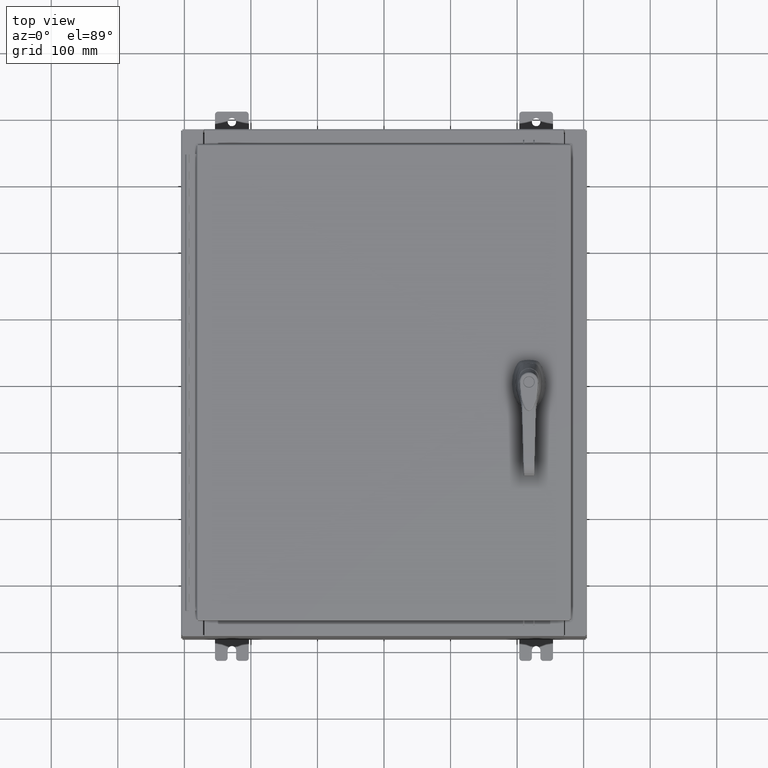
[diagram: clean part render]
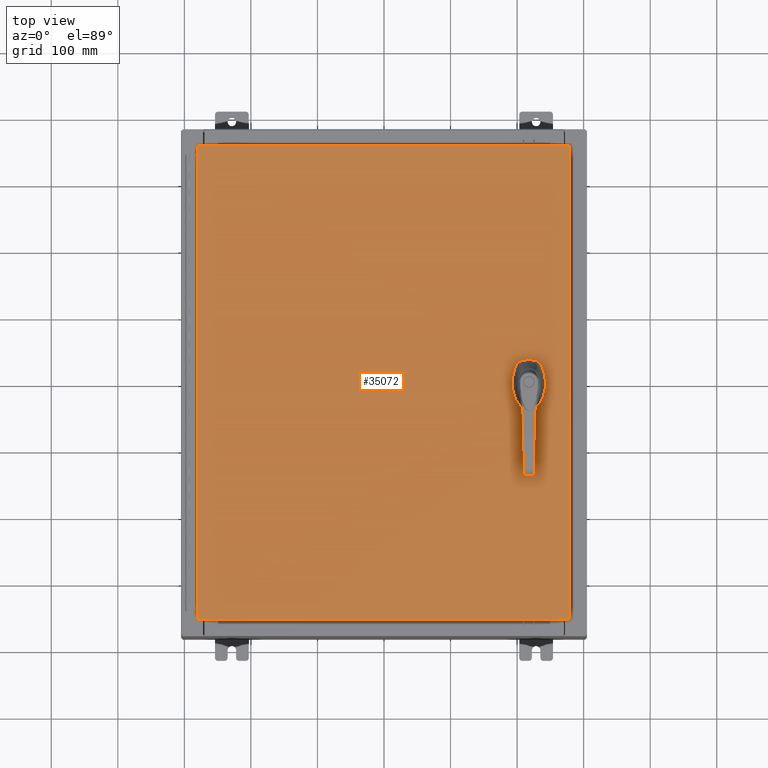
[diagram: same view with one face highlighted and labeled with its STEP entity id]
A machine part, top view. The second image highlights one B-rep face of the part: STEP entity #35072.
In plain terms, the highlighted planar face has unit normal (0, 0, -1).
Its self-contained STEP definition (entity closure, byte-faithful):
#1230 = EDGE_CURVE ( 'NONE', #35526, #105007, #109767, .T. ) ;
#2139 = EDGE_CURVE ( 'NONE', #70775, #88157, #19090, .T. ) ;
#2885 = CARTESIAN_POINT ( 'NONE',  ( -10.99030000000000000, 14.00630000000000100, -2.048885995248197400E-016 ) ) ;
#3377 = CARTESIAN_POINT ( 'NONE',  ( 8.577999999999999400, 0.0000000000000000000, 0.0000000000000000000 ) ) ;
#4456 = CARTESIAN_POINT ( 'NONE',  ( 8.406499999999999400, -1.338000000000000100, 0.0000000000000000000 ) ) ;
#9312 = VECTOR ( 'NONE', #97770, 39.37007874015748100 ) ;
#11094 = CARTESIAN_POINT ( 'NONE',  ( 0.0000000000000000000, 0.0000000000000000000, 0.0000000000000000000 ) ) ;
#12430 = DIRECTION ( 'NONE',  ( 1.000000000000000000, 0.0000000000000000000, 0.0000000000000000000 ) ) ;
#13641 = ORIENTED_EDGE ( 'NONE', *, *, #1230, .F. ) ;
#14048 = ORIENTED_EDGE ( 'NONE', *, *, #94148, .F. ) ;
#16464 = DIRECTION ( 'NONE',  ( -0.0000000000000000000, 0.0000000000000000000, 1.000000000000000000 ) ) ;
#19034 = DIRECTION ( 'NONE',  ( -0.0000000000000000000, 0.0000000000000000000, 1.000000000000000000 ) ) ;
#19090 = CIRCLE ( 'NONE', #76525, 0.1715000000000011500 ) ;
#19731 = ORIENTED_EDGE ( 'NONE', *, *, #37177, .F. ) ;
#21536 = LINE ( 'NONE', #71885, #114935 ) ;
#22124 = VERTEX_POINT ( 'NONE', #87342 ) ;
#22167 = FACE_BOUND ( 'NONE', #51719, .T. ) ;
#22330 = CARTESIAN_POINT ( 'NONE',  ( 10.99030000000000000, 14.00629999999999800, -2.048885995248197400E-016 ) ) ;
#23907 = LINE ( 'NONE', #107891, #66390 ) ;
#24659 = VECTOR ( 'NONE', #87034, 39.37007874015748100 ) ;
#24834 = CARTESIAN_POINT ( 'NONE',  ( 8.749500000000001200, -1.338000000000000100, 0.0000000000000000000 ) ) ;
#25132 = LINE ( 'NONE', #110774, #70450 ) ;
#26752 = CIRCLE ( 'NONE', #27477, 0.4499999999999156900 ) ;
#26948 = AXIS2_PLACEMENT_3D ( 'NONE', #73222, #19034, #82316 ) ;
#27477 = AXIS2_PLACEMENT_3D ( 'NONE', #95550, #41382, #104639 ) ;
#28140 = VERTEX_POINT ( 'NONE', #76343 ) ;
#28326 = EDGE_CURVE ( 'NONE', #106172, #22124, #21536, .T. ) ;
#28446 = AXIS2_PLACEMENT_3D ( 'NONE', #97382, #43223, #106478 ) ;
#29030 = CARTESIAN_POINT ( 'NONE',  ( 8.377772629243690300, 0.4029999999999252000, 0.0000000000000000000 ) ) ;
#29323 = PLANE ( 'NONE',  #72355 ) ;
#29329 = DIRECTION ( 'NONE',  ( 0.0000000000000000000, -1.000000000000000000, 0.0000000000000000000 ) ) ;
#30129 = ORIENTED_EDGE ( 'NONE', *, *, #28326, .T. ) ;
#30607 = DIRECTION ( 'NONE',  ( 1.000000000000000000, 0.0000000000000000000, 0.0000000000000000000 ) ) ;
#30853 = VERTEX_POINT ( 'NONE', #64247 ) ;
#31437 = VERTEX_POINT ( 'NONE', #33979 ) ;
#31760 = ORIENTED_EDGE ( 'NONE', *, *, #31910, .F. ) ;
#31910 = EDGE_CURVE ( 'NONE', #31437, #40665, #26752, .T. ) ;
#32397 = ORIENTED_EDGE ( 'NONE', *, *, #2139, .F. ) ;
#33979 = CARTESIAN_POINT ( 'NONE',  ( 8.980999999999925300, 0.2002273707563080300, 0.0000000000000000000 ) ) ;
#34529 = CARTESIAN_POINT ( 'NONE',  ( 10.99030000000000000, -14.00629999999999800, -2.048885995248197400E-016 ) ) ;
#35072 = ADVANCED_FACE ( 'NONE', ( #91488, #70287, #22167 ), #29323, .F. ) ;
#35526 = VERTEX_POINT ( 'NONE', #29030 ) ;
#37048 = EDGE_CURVE ( 'NONE', #22124, #53087, #57514, .T. ) ;
#37177 = EDGE_CURVE ( 'NONE', #88157, #70775, #97074, .T. ) ;
#38094 = LINE ( 'NONE', #42923, #65001 ) ;
#38430 = DIRECTION ( 'NONE',  ( -1.000000000000000000, 0.0000000000000000000, -0.0000000000000000000 ) ) ;
#38925 = EDGE_CURVE ( 'NONE', #31437, #56629, #96863, .T. ) ;
#39011 = EDGE_CURVE ( 'NONE', #53087, #87627, #112412, .T. ) ;
#40665 = VERTEX_POINT ( 'NONE', #110733 ) ;
#41382 = DIRECTION ( 'NONE',  ( -0.0000000000000000000, 0.0000000000000000000, 1.000000000000000000 ) ) ;
#42923 = CARTESIAN_POINT ( 'NONE',  ( 0.0000000000000000000, 0.4029999999999252000, 0.0000000000000000000 ) ) ;
#43223 = DIRECTION ( 'NONE',  ( -0.0000000000000000000, 0.0000000000000000000, 1.000000000000000000 ) ) ;
#43327 = ORIENTED_EDGE ( 'NONE', *, *, #65440, .F. ) ;
#43701 = CARTESIAN_POINT ( 'NONE',  ( 8.778227370756310300, -0.4029999999999252000, 0.0000000000000000000 ) ) ;
#44651 = EDGE_CURVE ( 'NONE', #87627, #106172, #46609, .T. ) ;
#44655 = DIRECTION ( 'NONE',  ( 1.000000000000000000, 0.0000000000000000000, 0.0000000000000000000 ) ) ;
#45889 = CIRCLE ( 'NONE', #28446, 0.4499999999999156900 ) ;
#46609 = LINE ( 'NONE', #51557, #113115 ) ;
#50679 = CARTESIAN_POINT ( 'NONE',  ( 8.980999999999925300, 2.450686610769032800E-014, 0.0000000000000000000 ) ) ;
#51557 = CARTESIAN_POINT ( 'NONE',  ( -10.99030000000000000, 14.00630000000000100, -2.048885995248197400E-016 ) ) ;
#51719 = EDGE_LOOP ( 'NONE', ( #91801, #73573, #43327, #87014, #14048, #13641, #117096, #31760 ) ) ;
#52912 = ORIENTED_EDGE ( 'NONE', *, *, #37048, .T. ) ;
#52967 = EDGE_CURVE ( 'NONE', #110840, #56629, #79058, .T. ) ;
#53087 = VERTEX_POINT ( 'NONE', #22330 ) ;
#53316 = DIRECTION ( 'NONE',  ( 1.000000000000000000, -0.0000000000000000000, -0.0000000000000000000 ) ) ;
#54688 = CARTESIAN_POINT ( 'NONE',  ( 8.175000000000073500, 0.2002273707563079800, 0.0000000000000000000 ) ) ;
#56629 = VERTEX_POINT ( 'NONE', #95500 ) ;
#57514 = LINE ( 'NONE', #34529, #9312 ) ;
#60671 = DIRECTION ( 'NONE',  ( 0.0000000000000000000, -1.000000000000000000, 0.0000000000000000000 ) ) ;
#61935 = EDGE_LOOP ( 'NONE', ( #30129, #52912, #64443, #109936 ) ) ;
#64247 = CARTESIAN_POINT ( 'NONE',  ( 8.175000000000073500, -0.2002273707563079800, 0.0000000000000000000 ) ) ;
#64311 = VECTOR ( 'NONE', #96513, 39.37007874015748100 ) ;
#64443 = ORIENTED_EDGE ( 'NONE', *, *, #39011, .T. ) ;
#65001 = VECTOR ( 'NONE', #115282, 39.37007874015748100 ) ;
#65440 = EDGE_CURVE ( 'NONE', #28140, #110840, #23907, .T. ) ;
#66390 = VECTOR ( 'NONE', #44655, 39.37007874015748100 ) ;
#66676 = DIRECTION ( 'NONE',  ( -0.0000000000000000000, 0.0000000000000000000, 1.000000000000000000 ) ) ;
#68826 = DIRECTION ( 'NONE',  ( -0.0000000000000000000, 0.0000000000000000000, 1.000000000000000000 ) ) ;
#70287 = FACE_OUTER_BOUND ( 'NONE', #61935, .T. ) ;
#70450 = VECTOR ( 'NONE', #29329, 39.37007874015748100 ) ;
#70660 = CARTESIAN_POINT ( 'NONE',  ( 8.577999999999999400, -1.338000000000000100, 0.0000000000000000000 ) ) ;
#70775 = VERTEX_POINT ( 'NONE', #24834 ) ;
#71885 = CARTESIAN_POINT ( 'NONE',  ( -10.99029999999999600, -14.00629999999999800, -2.219626494852214000E-016 ) ) ;
#72355 = AXIS2_PLACEMENT_3D ( 'NONE', #11094, #92605, #38430 ) ;
#73222 = CARTESIAN_POINT ( 'NONE',  ( 8.577999999999999400, -1.338000000000000100, 0.0000000000000000000 ) ) ;
#73573 = ORIENTED_EDGE ( 'NONE', *, *, #52967, .F. ) ;
#73986 = EDGE_CURVE ( 'NONE', #30853, #28140, #45889, .T. ) ;
#76343 = CARTESIAN_POINT ( 'NONE',  ( 8.377772629243690300, -0.4029999999999252000, 0.0000000000000000000 ) ) ;
#76525 = AXIS2_PLACEMENT_3D ( 'NONE', #70660, #16464, #79739 ) ;
#78692 = CARTESIAN_POINT ( 'NONE',  ( 10.99030000000000000, 14.00629999999999800, -2.048885995248197400E-016 ) ) ;
#79058 = CIRCLE ( 'NONE', #92984, 0.4499999999999156900 ) ;
#79739 = DIRECTION ( 'NONE',  ( 1.000000000000000000, 0.0000000000000000000, 0.0000000000000000000 ) ) ;
#82316 = DIRECTION ( 'NONE',  ( 1.000000000000000000, 0.0000000000000000000, 0.0000000000000000000 ) ) ;
#84185 = EDGE_LOOP ( 'NONE', ( #32397, #19731 ) ) ;
#85305 = CARTESIAN_POINT ( 'NONE',  ( 8.577999999999999400, 0.0000000000000000000, 0.0000000000000000000 ) ) ;
#87014 = ORIENTED_EDGE ( 'NONE', *, *, #73986, .F. ) ;
#87034 = DIRECTION ( 'NONE',  ( 2.728745808672812900E-015, -1.000000000000000000, 0.0000000000000000000 ) ) ;
#87342 = CARTESIAN_POINT ( 'NONE',  ( 10.99030000000000000, -14.00629999999999800, -2.048885995248197400E-016 ) ) ;
#87627 = VERTEX_POINT ( 'NONE', #2885 ) ;
#88157 = VERTEX_POINT ( 'NONE', #4456 ) ;
#91488 = FACE_BOUND ( 'NONE', #84185, .T. ) ;
#91801 = ORIENTED_EDGE ( 'NONE', *, *, #38925, .T. ) ;
#92605 = DIRECTION ( 'NONE',  ( 0.0000000000000000000, 0.0000000000000000000, -1.000000000000000000 ) ) ;
#92984 = AXIS2_PLACEMENT_3D ( 'NONE', #3377, #66676, #12430 ) ;
#93137 = AXIS2_PLACEMENT_3D ( 'NONE', #85305, #68826, #30607 ) ;
#94148 = EDGE_CURVE ( 'NONE', #105007, #30853, #25132, .T. ) ;
#95109 = CARTESIAN_POINT ( 'NONE',  ( -10.99029999999999800, -14.00629999999999800, -2.048885995248197400E-016 ) ) ;
#95500 = CARTESIAN_POINT ( 'NONE',  ( 8.980999999999927000, -0.2002273707563079800, 0.0000000000000000000 ) ) ;
#95550 = CARTESIAN_POINT ( 'NONE',  ( 8.577999999999999400, 0.0000000000000000000, 0.0000000000000000000 ) ) ;
#96513 = DIRECTION ( 'NONE',  ( -1.000000000000000000, -0.0000000000000000000, -0.0000000000000000000 ) ) ;
#96863 = LINE ( 'NONE', #50679, #24659 ) ;
#97074 = CIRCLE ( 'NONE', #26948, 0.1715000000000011500 ) ;
#97382 = CARTESIAN_POINT ( 'NONE',  ( 8.577999999999999400, 0.0000000000000000000, 0.0000000000000000000 ) ) ;
#97770 = DIRECTION ( 'NONE',  ( 0.0000000000000000000, 1.000000000000000000, 0.0000000000000000000 ) ) ;
#104639 = DIRECTION ( 'NONE',  ( 1.000000000000000000, 0.0000000000000000000, 0.0000000000000000000 ) ) ;
#105007 = VERTEX_POINT ( 'NONE', #54688 ) ;
#106172 = VERTEX_POINT ( 'NONE', #95109 ) ;
#106478 = DIRECTION ( 'NONE',  ( 1.000000000000000000, 0.0000000000000000000, 0.0000000000000000000 ) ) ;
#107891 = CARTESIAN_POINT ( 'NONE',  ( 0.0000000000000000000, -0.4029999999999252000, 0.0000000000000000000 ) ) ;
#109767 = CIRCLE ( 'NONE', #93137, 0.4499999999999156900 ) ;
#109936 = ORIENTED_EDGE ( 'NONE', *, *, #44651, .T. ) ;
#110733 = CARTESIAN_POINT ( 'NONE',  ( 8.778227370756310300, 0.4029999999999252000, 0.0000000000000000000 ) ) ;
#110774 = CARTESIAN_POINT ( 'NONE',  ( 8.175000000000073500, 0.0000000000000000000, 0.0000000000000000000 ) ) ;
#110840 = VERTEX_POINT ( 'NONE', #43701 ) ;
#112412 = LINE ( 'NONE', #78692, #64311 ) ;
#112617 = EDGE_CURVE ( 'NONE', #40665, #35526, #38094, .T. ) ;
#113115 = VECTOR ( 'NONE', #60671, 39.37007874015748100 ) ;
#114935 = VECTOR ( 'NONE', #53316, 39.37007874015748100 ) ;
#115282 = DIRECTION ( 'NONE',  ( -1.000000000000000000, 0.0000000000000000000, 0.0000000000000000000 ) ) ;
#117096 = ORIENTED_EDGE ( 'NONE', *, *, #112617, .F. ) ;